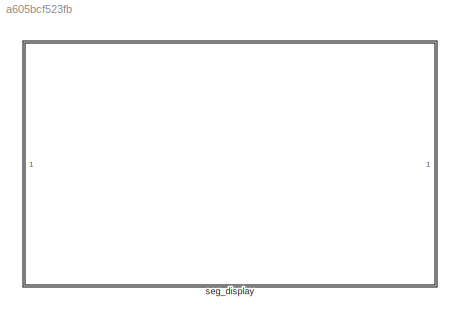
MODEL slx_a605bcf523fb
KIND library
CONFIG AbsTol = auto
CONFIG EnableMultiTasking = off
CONFIG FixedStep = auto
CONFIG MaxStep = auto
CONFIG MinStep = auto
CONFIG RelTol = 1e-3
CONFIG SampleTimeConstraint = Unconstrained
CONFIG SolverName = VariableStepAuto
CONFIG StartTime = 0.0
CONFIG StopTime = 10.0
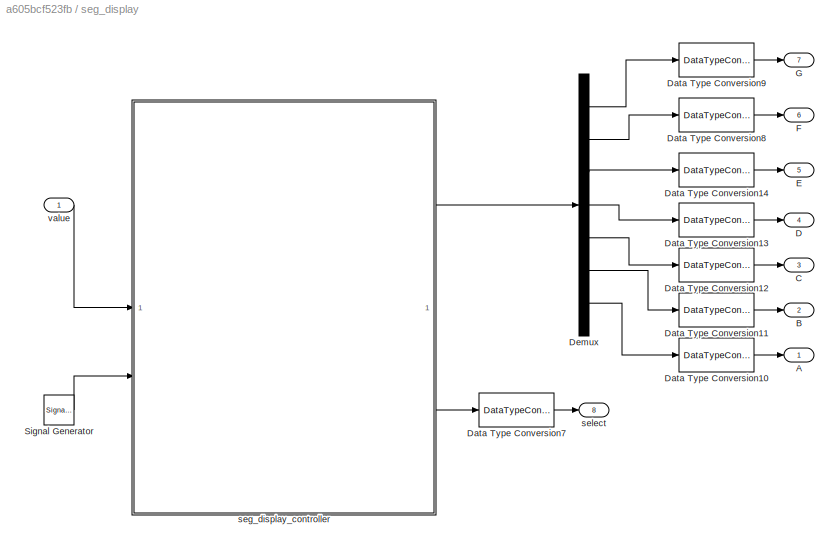
BLOCK [SubSystem] seg_display
BLOCK [Outport] seg_display/A
BLOCK [Outport] seg_display/B
  Port = 2
BLOCK [Outport] seg_display/C
  Port = 3
BLOCK [Outport] seg_display/D
  Port = 4
BLOCK [DataTypeConversion] seg_display/Data Type Conversion10
  OutDataTypeStr = boolean
  RndMeth = Floor
  SaturateOnIntegerOverflow = off
BLOCK [DataTypeConversion] seg_display/Data Type Conversion11
  OutDataTypeStr = boolean
  RndMeth = Floor
  SaturateOnIntegerOverflow = off
BLOCK [DataTypeConversion] seg_display/Data Type Conversion12
  OutDataTypeStr = boolean
  RndMeth = Floor
  SaturateOnIntegerOverflow = off
BLOCK [DataTypeConversion] seg_display/Data Type Conversion13
  OutDataTypeStr = boolean
  RndMeth = Floor
  SaturateOnIntegerOverflow = off
BLOCK [DataTypeConversion] seg_display/Data Type Conversion14
  OutDataTypeStr = boolean
  RndMeth = Floor
  SaturateOnIntegerOverflow = off
BLOCK [DataTypeConversion] seg_display/Data Type Conversion7
  OutDataTypeStr = boolean
  RndMeth = Floor
  SaturateOnIntegerOverflow = off
BLOCK [DataTypeConversion] seg_display/Data Type Conversion8
  OutDataTypeStr = boolean
  RndMeth = Floor
  SaturateOnIntegerOverflow = off
BLOCK [DataTypeConversion] seg_display/Data Type Conversion9
  OutDataTypeStr = boolean
  RndMeth = Floor
  SaturateOnIntegerOverflow = off
BLOCK [Demux] seg_display/Demux
  Outputs = 7
BLOCK [Outport] seg_display/E
  Port = 5
BLOCK [Outport] seg_display/F
  Port = 6
BLOCK [Outport] seg_display/G
  Port = 7
BLOCK [SignalGenerator] seg_display/Signal Generator
  Frequency = 15
  WaveForm = square
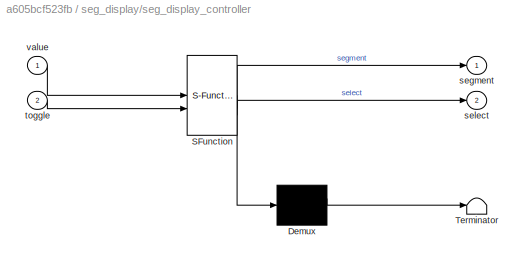
BLOCK [SubSystem] seg_display/seg_display_controller
  ErrorFcn = Stateflow.Translate.translate
  PermitHierarchicalResolution = ExplicitOnly
  SFBlockType = MATLAB Function
  TreatAsAtomicUnit = on
BLOCK [Demux] seg_display/seg_display_controller/ Demux 
  Outputs = 1
BLOCK [S-Function] seg_display/seg_display_controller/ SFunction 
  EnableBusSupport = on
  FunctionName = sf_sfun
  PortCounts = [2 3]
  SFcnIsStateOwnerBlock = off
  SFunctionDeploymentMode = off
  Tag = Stateflow S-Function 1
BLOCK [Terminator] seg_display/seg_display_controller/ Terminator 
BLOCK [Outport] seg_display/seg_display_controller/segment
BLOCK [Outport] seg_display/seg_display_controller/select
  Port = 2
BLOCK [Inport] seg_display/seg_display_controller/toggle
  Port = 2
BLOCK [Inport] seg_display/seg_display_controller/value
BLOCK [Outport] seg_display/select
  Port = 8
BLOCK [Inport] seg_display/value
LINE seg_display/Data Type Conversion10:1 -> seg_display/A:1
LINE seg_display/Data Type Conversion11:1 -> seg_display/B:1
LINE seg_display/Data Type Conversion12:1 -> seg_display/C:1
LINE seg_display/Data Type Conversion13:1 -> seg_display/D:1
LINE seg_display/Data Type Conversion14:1 -> seg_display/E:1
LINE seg_display/Data Type Conversion7:1 -> seg_display/select:1
LINE seg_display/Data Type Conversion8:1 -> seg_display/F:1
LINE seg_display/Data Type Conversion9:1 -> seg_display/G:1
LINE seg_display/Demux:1 -> seg_display/Data Type Conversion9:1
LINE seg_display/Demux:2 -> seg_display/Data Type Conversion8:1
LINE seg_display/Demux:3 -> seg_display/Data Type Conversion14:1
LINE seg_display/Demux:4 -> seg_display/Data Type Conversion13:1
LINE seg_display/Demux:5 -> seg_display/Data Type Conversion12:1
LINE seg_display/Demux:6 -> seg_display/Data Type Conversion11:1
LINE seg_display/Demux:7 -> seg_display/Data Type Conversion10:1
LINE seg_display/Signal Generator:1 -> seg_display/seg_display_controller:2
LINE seg_display/seg_display_controller:1 -> seg_display/Demux:1
LINE seg_display/seg_display_controller:2 -> seg_display/Data Type Conversion7:1
LINE seg_display/value:1 -> seg_display/seg_display_controller:1
CHART seg_display/seg_display_controller states=1 transitions=1
  STATE_LABEL 'eML_blk_kernel()'
  STATE_LABEL 'SCRIPT:\nfunction [segment, select] = SevenSegmentControl(value, toggle)\n% Eingänge:\n% value: Zahlenwert (0–99), der angezeigt werden soll\n% toggle: Umschaltsignal (0 oder 1) zum Wechsel zwischen Zehner- und Einerstelle\n\n% Ausgänge:\n% segment: 8-Bit-Signal für die Segmente (a-g und dp)\n% select: 2-Bit-Signal zur Aktivierung eines Displays\n\n% Begrenzung des Werts auf den Bereich 0–99\nvalue = max(0, ...<+969ch>'
CHART  states=0 transitions=0
